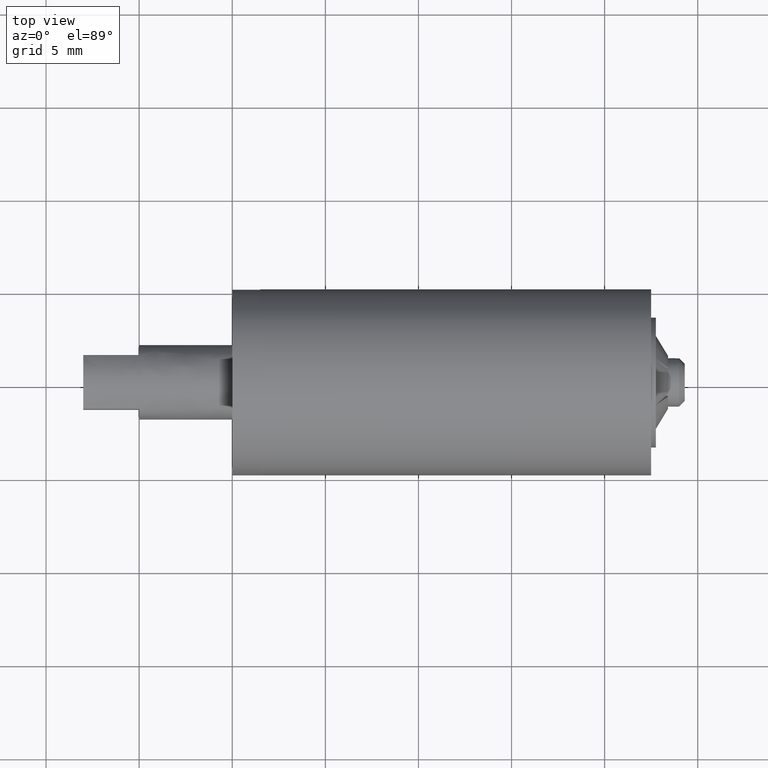
[diagram: clean part render]
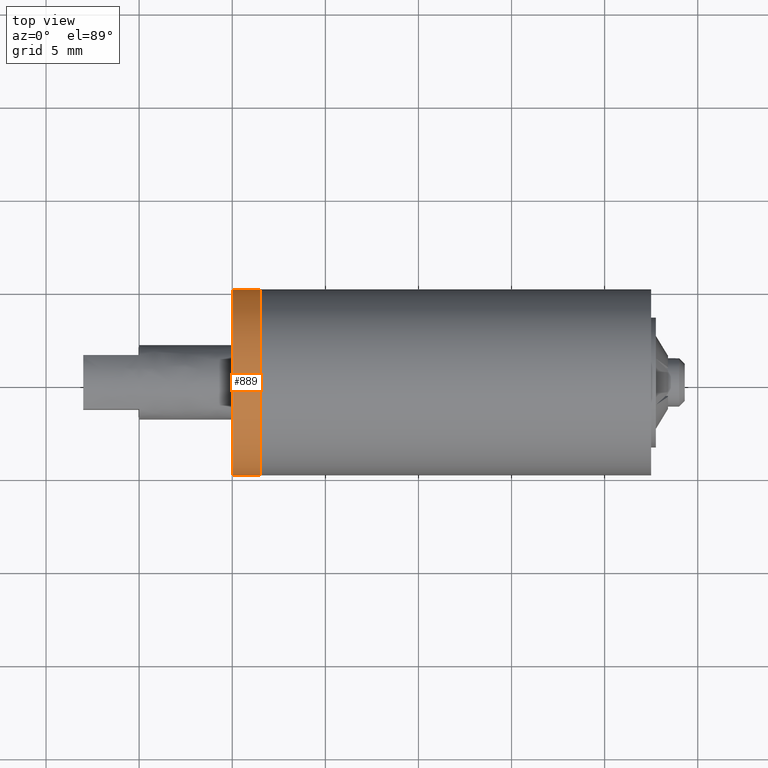
[diagram: same view with one face highlighted and labeled with its STEP entity id]
A machine part, top view. The second image highlights one B-rep face of the part: STEP entity #889.
In plain terms, the highlighted face is a freeform B-spline surface patch.
Its self-contained STEP definition (entity closure, byte-faithful):
#726=CARTESIAN_POINT('',(4.999999999999956,4.965047923238447,0.590168721586030));
#727=VERTEX_POINT('',#726);
#745=CARTESIAN_POINT('',(6.500000000000000,4.965047919637886,0.590168751877424));
#746=VERTEX_POINT('',#745);
#747=CARTESIAN_POINT('',(6.500000000000000,4.965047919637886,0.590168751877424));
#748=CARTESIAN_POINT('',(4.999999999999956,4.965047923238447,0.590168721586030));
#749=QUASI_UNIFORM_CURVE('',1,(#747,#748),.UNSPECIFIED.,.F.,.U.);
#750=EDGE_CURVE('',#746,#727,#749,.T.);
#769=CARTESIAN_POINT('',(6.500000000000000,-4.990674448095367,-0.305235242184129));
#770=VERTEX_POINT('',#769);
#784=CARTESIAN_POINT('',(4.999999999999783,-4.990674453796516,-0.305235148966578));
#785=VERTEX_POINT('',#784);
#786=CARTESIAN_POINT('',(6.500000000000000,-4.990674448095367,-0.305235242184129));
#787=CARTESIAN_POINT('',(4.999999999999783,-4.990674453796516,-0.305235148966578));
#788=QUASI_UNIFORM_CURVE('',1,(#786,#787),.UNSPECIFIED.,.F.,.U.);
#789=EDGE_CURVE('',#770,#785,#788,.T.);
#807=CARTESIAN_POINT('',(6.537500000000001,-4.990673992109234,-0.305242697674279));
#808=CARTESIAN_POINT('',(6.537500000000002,-5.295916689783513,4.685431294434955));
#809=CARTESIAN_POINT('',(6.537500000000001,-0.305242697674279,4.990673992109234));
#810=CARTESIAN_POINT('',(6.537500000000001,4.407717454197417,5.278930983662532));
#811=CARTESIAN_POINT('',(6.537500000000002,4.965047631818233,0.590171173283781));
#812=CARTESIAN_POINT('',(4.961562499999999,-4.990673992109234,-0.305242697674279));
#813=CARTESIAN_POINT('',(4.961562500000000,-5.295916689783513,4.685431294434955));
#814=CARTESIAN_POINT('',(4.961562499999999,-0.305242697674279,4.990673992109234));
#815=CARTESIAN_POINT('',(4.961562499999999,4.407717454197417,5.278930983662532));
#816=CARTESIAN_POINT('',(4.961562500000000,4.965047631818233,0.590171173283781));
#824=(BOUNDED_SURFACE()B_SPLINE_SURFACE(2,1,((#807,#812),(#808,#813),(#809,#814),(#810,#815),(#811,#816)),.UNSPECIFIED.,.F.,.F.,.U.)B_SPLINE_SURFACE_WITH_KNOTS((3,2,3),(2,2),(0.0,8.284271247461733,16.237171645025001),(0.0,1.0),.UNSPECIFIED.)GEOMETRIC_REPRESENTATION_ITEM()RATIONAL_B_SPLINE_SURFACE(((1.0,1.0),(0.707106781186548,0.707106781186548),(1.0,1.0),(0.718822509939086,0.718822509939086),(0.977505800795127,0.977505800795127)))REPRESENTATION_ITEM('')SURFACE());
#825=CARTESIAN_POINT('',(5.0,0.0,4.999999999999901));
#826=VERTEX_POINT('',#825);
#827=CARTESIAN_POINT('',(5.0,0.0,4.999999999999901));
#828=CARTESIAN_POINT('',(4.999999999999999,4.440874838058830,4.999999999999900));
#829=CARTESIAN_POINT('',(4.999999999999956,4.965047923238446,0.590168721586030));
#837=(BOUNDED_CURVE()B_SPLINE_CURVE(2,(#827,#828,#829),.UNSPECIFIED.,.F.,.U.)B_SPLINE_CURVE_WITH_KNOTS((3,3),(0.0,0.229562556967996),.UNSPECIFIED.)CURVE()GEOMETRIC_REPRESENTATION_ITEM()RATIONAL_B_SPLINE_CURVE((1.0,0.731050735082389,0.956026917757975))REPRESENTATION_ITEM(''));
#838=EDGE_CURVE('',#826,#727,#837,.T.);
#839=ORIENTED_EDGE('',*,*,#838,.F.);
#840=CARTESIAN_POINT('',(4.999999999999783,-4.990674453796516,-0.305235148966578));
#841=CARTESIAN_POINT('',(5.0,-4.999999999999901,-0.152760031556608));
#842=CARTESIAN_POINT('',(5.0,-4.999999999999901,0.0));
#843=CARTESIAN_POINT('',(4.999999999999999,-4.999999999999901,4.999999999999901));
#844=CARTESIAN_POINT('',(5.0,0.0,4.999999999999901));
#852=(BOUNDED_CURVE()B_SPLINE_CURVE(2,(#840,#841,#842,#843,#844),.UNSPECIFIED.,.F.,.U.)B_SPLINE_CURVE_WITH_KNOTS((3,2,3),(0.739333223229870,0.750000000000000,1.0),.UNSPECIFIED.)CURVE()GEOMETRIC_REPRESENTATION_ITEM()RATIONAL_B_SPLINE_CURVE((0.976072601020595,0.987503093669728,1.0,0.707106781186547,1.0))REPRESENTATION_ITEM(''));
#853=EDGE_CURVE('',#785,#826,#852,.T.);
#854=ORIENTED_EDGE('',*,*,#853,.F.);
#855=ORIENTED_EDGE('',*,*,#789,.F.);
#856=CARTESIAN_POINT('',(6.500000000000000,0.0,4.999999999999901));
#857=VERTEX_POINT('',#856);
#858=CARTESIAN_POINT('',(6.500000000000000,-4.990674448095367,-0.305235242184129));
#859=CARTESIAN_POINT('',(6.500000000000000,-4.999999999999901,-0.152760078296059));
#860=CARTESIAN_POINT('',(6.500000000000000,-4.999999999999901,0.0));
#861=CARTESIAN_POINT('',(6.500000000000000,-4.999999999999901,4.999999999999901));
#862=CARTESIAN_POINT('',(6.500000000000000,0.0,4.999999999999901));
#870=(BOUNDED_CURVE()B_SPLINE_CURVE(2,(#858,#859,#860,#861,#862),.UNSPECIFIED.,.F.,.U.)B_SPLINE_CURVE_WITH_KNOTS((3,2,3),(0.739333220006980,0.750000000000000,1.0),.UNSPECIFIED.)CURVE()GEOMETRIC_REPRESENTATION_ITEM()RATIONAL_B_SPLINE_CURVE((0.976072594113311,0.987503089893877,1.0,0.707106781186547,1.0))REPRESENTATION_ITEM(''));
#871=EDGE_CURVE('',#770,#857,#870,.T.);
#872=ORIENTED_EDGE('',*,*,#871,.T.);
#873=CARTESIAN_POINT('',(6.500000000000000,0.0,4.999999999999901));
#874=CARTESIAN_POINT('',(6.499999999999999,4.440874810774649,4.999999999999901));
#875=CARTESIAN_POINT('',(6.500000000000001,4.965047919637886,0.590168751877424));
#883=(BOUNDED_CURVE()B_SPLINE_CURVE(2,(#873,#874,#875),.UNSPECIFIED.,.F.,.U.)B_SPLINE_CURVE_WITH_KNOTS((3,3),(0.0,0.229562555936919),.UNSPECIFIED.)CURVE()GEOMETRIC_REPRESENTATION_ITEM()RATIONAL_B_SPLINE_CURVE((1.0,0.731050736290370,0.956026915737021))REPRESENTATION_ITEM(''));
#884=EDGE_CURVE('',#857,#746,#883,.T.);
#885=ORIENTED_EDGE('',*,*,#884,.T.);
#886=ORIENTED_EDGE('',*,*,#750,.T.);
#887=EDGE_LOOP('',(#839,#854,#855,#872,#885,#886));
#888=FACE_OUTER_BOUND('',#887,.T.);
#889=ADVANCED_FACE('',(#888),#824,.T.);